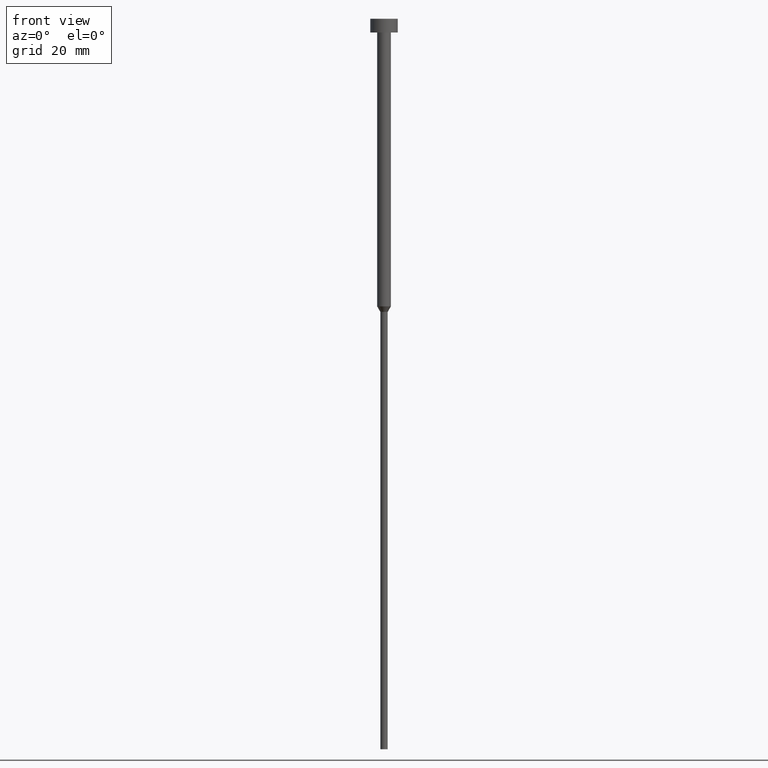
[diagram: clean part render]
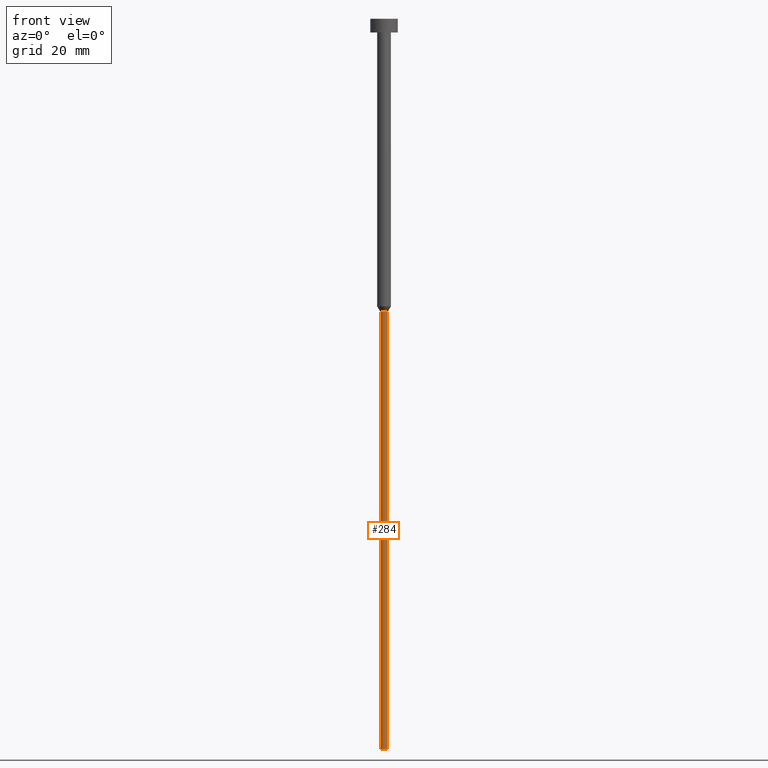
[diagram: same view with one face highlighted and labeled with its STEP entity id]
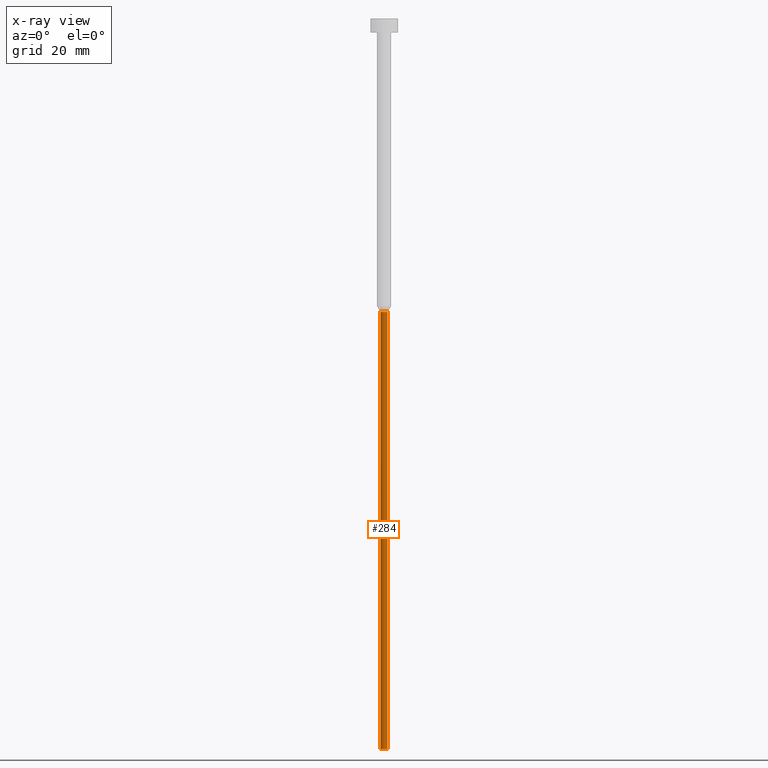
[diagram: x-ray of the same camera — body ghosted, the highlighted face saturated]
A machine part, front view. The second image highlights one B-rep face of the part: STEP entity #284.
The next image is the same camera in x-ray: the body ghosted, the highlighted face saturated — about 0% of this face is hidden behind the body in this view.
In plain terms, the highlighted cylindrical surface (edge-blend (fillet) strip) has radius 0.8 mm, axis along (-0, -0, 1).
Its self-contained STEP definition (entity closure, byte-faithful):
#8 = VERTEX_POINT ( 'NONE', #44 ) ;
#21 = CARTESIAN_POINT ( 'NONE',  ( 0.7999999999999999334, 0.000000000000000000, 0.000000000000000000 ) ) ;
#23 = EDGE_CURVE ( 'NONE', #118, #321, #221, .T. ) ;
#26 = DIRECTION ( 'NONE',  ( -0.000000000000000000, -0.000000000000000000, 1.000000000000000000 ) ) ;
#44 = CARTESIAN_POINT ( 'NONE',  ( -0.8000000000000001554, 9.797174393178827383E-17, -64.21243556529820751 ) ) ;
#48 = DIRECTION ( 'NONE',  ( -0.000000000000000000, -0.000000000000000000, 1.000000000000000000 ) ) ;
#62 = AXIS2_PLACEMENT_3D ( 'NONE', #104, #217, #322 ) ;
#84 = AXIS2_PLACEMENT_3D ( 'NONE', #256, #147, #116 ) ;
#95 = CIRCLE ( 'NONE', #162, 0.8000000000000000444 ) ;
#99 = ORIENTED_EDGE ( 'NONE', *, *, #137, .F. ) ;
#104 = CARTESIAN_POINT ( 'NONE',  ( 0.000000000000000000, 0.000000000000000000, 0.000000000000000000 ) ) ;
#116 = DIRECTION ( 'NONE',  ( 1.000000000000000000, 0.000000000000000000, 0.000000000000000000 ) ) ;
#118 = VERTEX_POINT ( 'NONE', #283 ) ;
#128 = ORIENTED_EDGE ( 'NONE', *, *, #23, .T. ) ;
#131 = FACE_OUTER_BOUND ( 'NONE', #341, .T. ) ;
#132 = VECTOR ( 'NONE', #143, 1000.000000000000000 ) ;
#134 = CARTESIAN_POINT ( 'NONE',  ( 0.8000000000000000444, 0.000000000000000000, -64.21243556529820751 ) ) ;
#135 = ORIENTED_EDGE ( 'NONE', *, *, #190, .T. ) ;
#137 = EDGE_CURVE ( 'NONE', #8, #321, #95, .T. ) ;
#143 = DIRECTION ( 'NONE',  ( -0.000000000000000000, -0.000000000000000000, 1.000000000000000000 ) ) ;
#147 = DIRECTION ( 'NONE',  ( -0.000000000000000000, -0.000000000000000000, 1.000000000000000000 ) ) ;
#162 = AXIS2_PLACEMENT_3D ( 'NONE', #230, #26, #259 ) ;
#190 = EDGE_CURVE ( 'NONE', #343, #118, #333, .T. ) ;
#196 = EDGE_CURVE ( 'NONE', #343, #8, #260, .T. ) ;
#217 = DIRECTION ( 'NONE',  ( -0.000000000000000000, -0.000000000000000000, 1.000000000000000000 ) ) ;
#221 = LINE ( 'NONE', #21, #290 ) ;
#225 = ORIENTED_EDGE ( 'NONE', *, *, #196, .F. ) ;
#229 = CARTESIAN_POINT ( 'NONE',  ( -0.7999999999999999334, 9.797174393178824918E-17, 0.000000000000000000 ) ) ;
#230 = CARTESIAN_POINT ( 'NONE',  ( 0.000000000000000000, 0.000000000000000000, -64.21243556529820751 ) ) ;
#245 = CYLINDRICAL_SURFACE ( 'NONE', #62, 0.7999999999999999334 ) ;
#256 = CARTESIAN_POINT ( 'NONE',  ( 0.000000000000000000, 0.000000000000000000, -160.0000000000000000 ) ) ;
#259 = DIRECTION ( 'NONE',  ( 1.000000000000000000, 0.000000000000000000, 0.000000000000000000 ) ) ;
#260 = LINE ( 'NONE', #229, #132 ) ;
#283 = CARTESIAN_POINT ( 'NONE',  ( 0.7999999999999999334, 0.000000000000000000, -160.0000000000000000 ) ) ;
#284 = ADVANCED_FACE ( 'NONE', ( #131 ), #245, .T. ) ;
#290 = VECTOR ( 'NONE', #48, 1000.000000000000000 ) ;
#321 = VERTEX_POINT ( 'NONE', #134 ) ;
#322 = DIRECTION ( 'NONE',  ( 1.000000000000000000, 0.000000000000000000, 0.000000000000000000 ) ) ;
#333 = CIRCLE ( 'NONE', #84, 0.7999999999999999334 ) ;
#341 = EDGE_LOOP ( 'NONE', ( #225, #135, #128, #99 ) ) ;
#342 = CARTESIAN_POINT ( 'NONE',  ( -0.7999999999999999334, 9.797174393178824918E-17, -160.0000000000000000 ) ) ;
#343 = VERTEX_POINT ( 'NONE', #342 ) ;